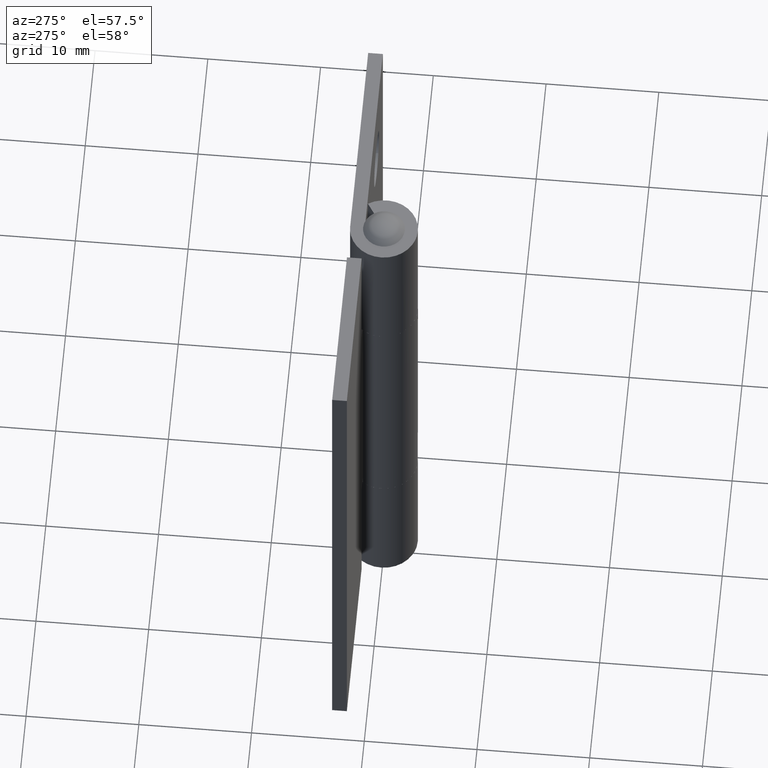
[diagram: clean part render]
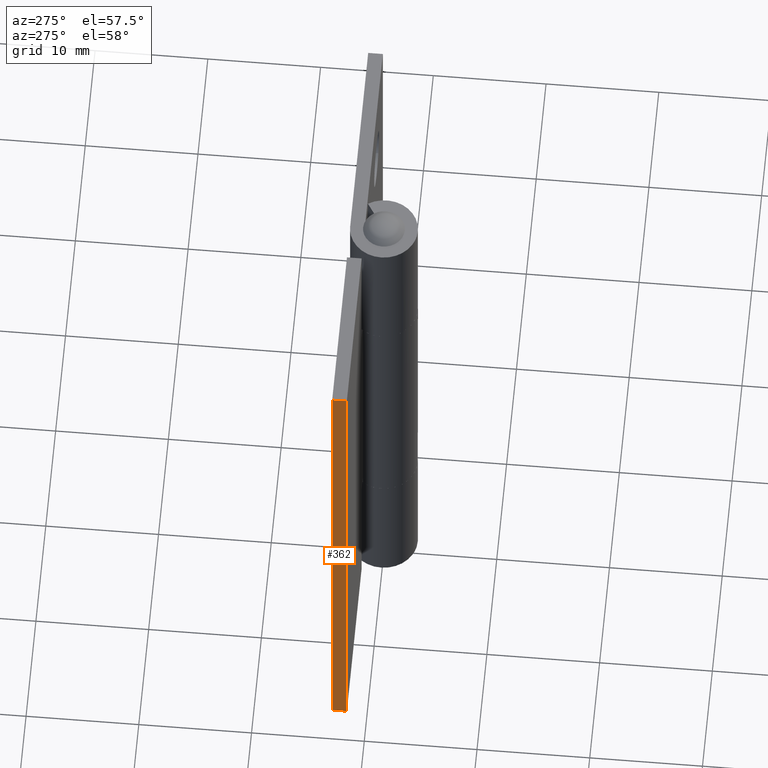
[diagram: same view with one face highlighted and labeled with its STEP entity id]
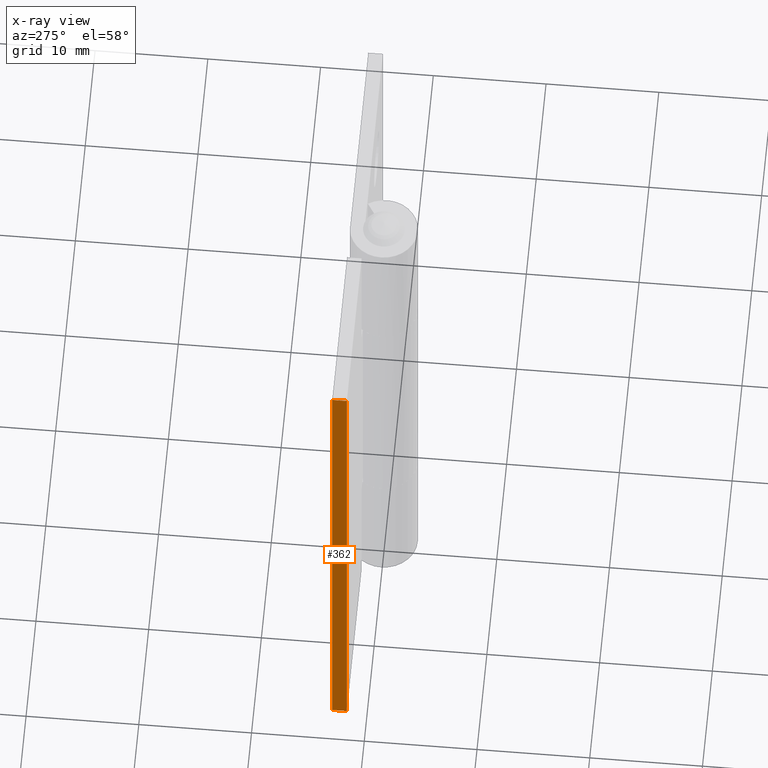
[diagram: x-ray of the same camera — body ghosted, the highlighted face saturated]
A machine part, auxiliary view. The second image highlights one B-rep face of the part: STEP entity #362.
The next image is the same camera in x-ray: the body ghosted, the highlighted face saturated — about 0% of this face is hidden behind the body in this view.
In plain terms, the highlighted face is a freeform B-spline surface patch.
Its self-contained STEP definition (entity closure, byte-faithful):
#26=CARTESIAN_POINT('',(-18.250000000000000,3.000002000000000,0.0));
#27=VERTEX_POINT('',#26);
#33=CARTESIAN_POINT('',(-18.250000000000000,3.000002000000000,50.999992000000098));
#34=VERTEX_POINT('',#33);
#35=CARTESIAN_POINT('',(-18.250000000000000,3.000002000000000,50.999992000000098));
#36=CARTESIAN_POINT('',(-18.250000000000000,3.000002000000000,0.0));
#37=QUASI_UNIFORM_CURVE('',1,(#35,#36),.UNSPECIFIED.,.F.,.U.);
#38=EDGE_CURVE('',#34,#27,#37,.T.);
#335=CARTESIAN_POINT('',(-18.250000000000000,1.635065952569654,-2.547449501552125));
#336=CARTESIAN_POINT('',(-18.250000000000000,1.635065952569654,53.547442869478623));
#337=CARTESIAN_POINT('',(-18.250000000000000,3.064937082299090,-2.547449501552125));
#338=CARTESIAN_POINT('',(-18.250000000000000,3.064937082299090,53.547442869478623));
#339=B_SPLINE_SURFACE_WITH_KNOTS('',1,1,((#335,#337),(#336,#338)),.UNSPECIFIED.,.F.,.F.,.U.,(2,2),(2,2),(0.0,56.094892371030738),(0.041708334948495,0.958291687403247),.UNSPECIFIED.);
#340=CARTESIAN_POINT('',(-18.250000000000000,1.700001000000000,0.0));
#341=VERTEX_POINT('',#340);
#342=CARTESIAN_POINT('',(-18.250000000000000,1.700001000000000,0.0));
#343=CARTESIAN_POINT('',(-18.250000000000000,3.000002000000000,0.0));
#344=QUASI_UNIFORM_CURVE('',1,(#342,#343),.UNSPECIFIED.,.F.,.U.);
#345=EDGE_CURVE('',#341,#27,#344,.T.);
#346=ORIENTED_EDGE('',*,*,#345,.F.);
#347=CARTESIAN_POINT('',(-18.250000000000000,1.700001000000000,50.999992000000098));
#348=VERTEX_POINT('',#347);
#349=CARTESIAN_POINT('',(-18.250000000000000,1.700001000000000,50.999992000000098));
#350=CARTESIAN_POINT('',(-18.250000000000000,1.700001000000000,0.0));
#351=QUASI_UNIFORM_CURVE('',1,(#349,#350),.UNSPECIFIED.,.F.,.U.);
#352=EDGE_CURVE('',#348,#341,#351,.T.);
#353=ORIENTED_EDGE('',*,*,#352,.F.);
#354=CARTESIAN_POINT('',(-18.250000000000000,1.700001000000000,50.999992000000098));
#355=CARTESIAN_POINT('',(-18.250000000000000,3.000002000000000,50.999992000000098));
#356=QUASI_UNIFORM_CURVE('',1,(#354,#355),.UNSPECIFIED.,.F.,.U.);
#357=EDGE_CURVE('',#348,#34,#356,.T.);
#358=ORIENTED_EDGE('',*,*,#357,.T.);
#359=ORIENTED_EDGE('',*,*,#38,.T.);
#360=EDGE_LOOP('',(#346,#353,#358,#359));
#361=FACE_OUTER_BOUND('',#360,.T.);
#362=ADVANCED_FACE('',(#361),#339,.T.);